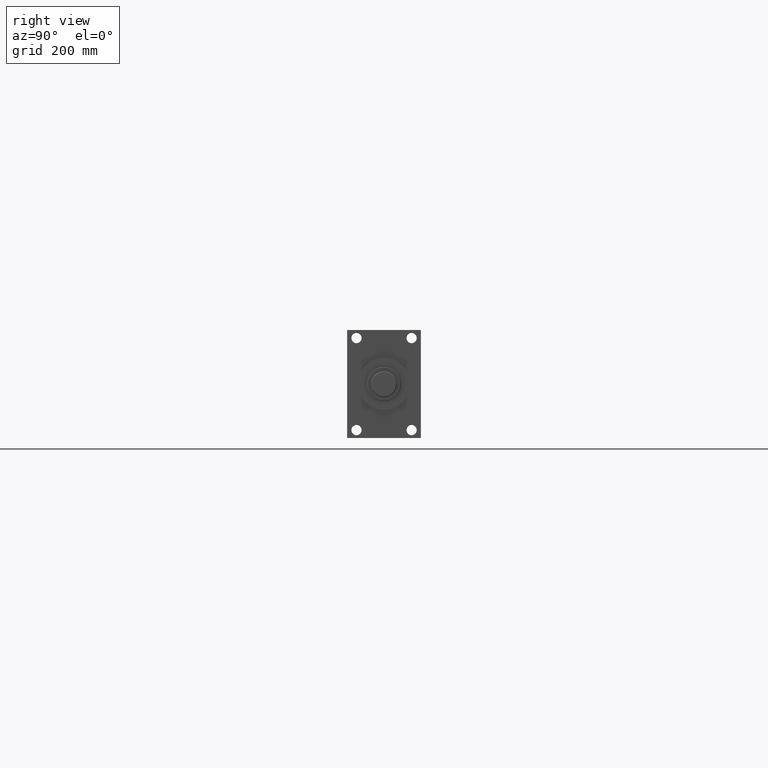
[diagram: clean part render]
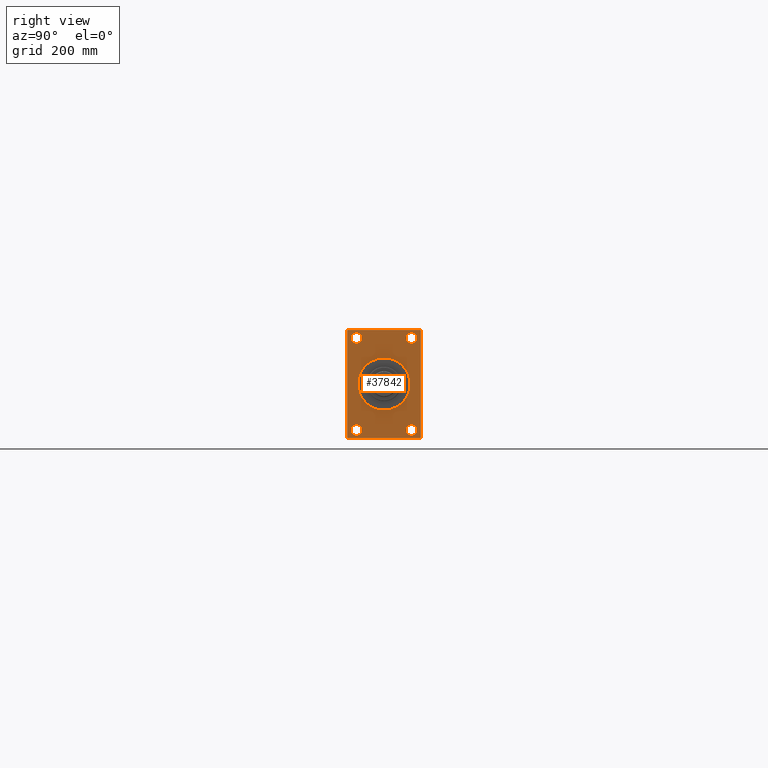
[diagram: same view with one face highlighted and labeled with its STEP entity id]
A machine part, right view. The second image highlights one B-rep face of the part: STEP entity #37842.
In plain terms, the highlighted planar face has unit normal (-1, 0, 0).
Its self-contained STEP definition (entity closure, byte-faithful):
#106 = ORIENTED_EDGE ( 'NONE', *, *, #2747, .T. ) ;
#253 = CARTESIAN_POINT ( 'NONE',  ( 1146.000000000000000, 0.000000000000000000, 46.00000000000000000 ) ) ;
#632 = ORIENTED_EDGE ( 'NONE', *, *, #41137, .F. ) ;
#1287 = DIRECTION ( 'NONE',  ( -1.000000000000000000, 0.000000000000000000, -0.000000000000000000 ) ) ;
#1589 = CARTESIAN_POINT ( 'NONE',  ( 1146.000000000000000, 64.99999999999997158, 94.99999999999997158 ) ) ;
#1931 = LINE ( 'NONE', #45971, #6034 ) ;
#1977 = EDGE_CURVE ( 'NONE', #7339, #36979, #26618, .T. ) ;
#2040 = CARTESIAN_POINT ( 'NONE',  ( 1146.000000000000000, -48.50000000000000000, 81.00000000000000000 ) ) ;
#2583 = AXIS2_PLACEMENT_3D ( 'NONE', #42895, #16620, #8857 ) ;
#2707 = ORIENTED_EDGE ( 'NONE', *, *, #32558, .T. ) ;
#2747 = EDGE_CURVE ( 'NONE', #45096, #46100, #27841, .T. ) ;
#3039 = EDGE_CURVE ( 'NONE', #30035, #10424, #33673, .T. ) ;
#3057 = DIRECTION ( 'NONE',  ( -0.000000000000000000, 0.000000000000000000, 1.000000000000000000 ) ) ;
#3300 = FACE_OUTER_BOUND ( 'NONE', #38415, .T. ) ;
#3521 = ORIENTED_EDGE ( 'NONE', *, *, #12786, .T. ) ;
#3701 = VERTEX_POINT ( 'NONE', #11917 ) ;
#3818 = ORIENTED_EDGE ( 'NONE', *, *, #46885, .T. ) ;
#4666 = AXIS2_PLACEMENT_3D ( 'NONE', #7363, #36567, #18063 ) ;
#6034 = VECTOR ( 'NONE', #31595, 1000.000000000000114 ) ;
#7013 = CARTESIAN_POINT ( 'NONE',  ( 1146.000000000000000, 64.49999999999992895, -95.00000000000001421 ) ) ;
#7048 = DIRECTION ( 'NONE',  ( -1.000000000000000000, 0.000000000000000000, -0.000000000000000000 ) ) ;
#7082 = VECTOR ( 'NONE', #39283, 1000.000000000000000 ) ;
#7339 = VERTEX_POINT ( 'NONE', #42814 ) ;
#7355 = DIRECTION ( 'NONE',  ( 0.000000000000000000, 0.000000000000000000, -1.000000000000000000 ) ) ;
#7363 = CARTESIAN_POINT ( 'NONE',  ( 1146.000000000000000, -48.49999999999999289, -81.00000000000001421 ) ) ;
#7577 = ORIENTED_EDGE ( 'NONE', *, *, #28703, .T. ) ;
#7670 = FACE_BOUND ( 'NONE', #17832, .T. ) ;
#8016 = VECTOR ( 'NONE', #9120, 1000.000000000000114 ) ;
#8146 = ORIENTED_EDGE ( 'NONE', *, *, #3039, .T. ) ;
#8191 = CARTESIAN_POINT ( 'NONE',  ( 1146.000000000000000, 48.50000000000000711, -71.49999999999995737 ) ) ;
#8273 = CARTESIAN_POINT ( 'NONE',  ( 1146.000000000000000, -65.00000000000001421, 94.50000000000002842 ) ) ;
#8445 = ORIENTED_EDGE ( 'NONE', *, *, #1977, .T. ) ;
#8822 = CARTESIAN_POINT ( 'NONE',  ( 1146.000000000000000, 48.50000000000000711, -81.00000000000001421 ) ) ;
#8857 = DIRECTION ( 'NONE',  ( 0.000000000000000000, 0.000000000000000000, 1.000000000000000000 ) ) ;
#9120 = DIRECTION ( 'NONE',  ( 0.000000000000000000, 0.7071067811864690800, -0.7071067811866260655 ) ) ;
#10169 = VECTOR ( 'NONE', #38377, 1000.000000000000000 ) ;
#10424 = VERTEX_POINT ( 'NONE', #12928 ) ;
#11088 = EDGE_CURVE ( 'NONE', #17420, #20852, #23526, .T. ) ;
#11448 = VERTEX_POINT ( 'NONE', #47031 ) ;
#11836 = VECTOR ( 'NONE', #42567, 1000.000000000000000 ) ;
#11917 = CARTESIAN_POINT ( 'NONE',  ( 1146.000000000000000, 64.50000000000002842, 94.99999999999997158 ) ) ;
#12771 = CARTESIAN_POINT ( 'NONE',  ( 1146.000000000000000, -64.50000000000018474, -95.00000000000002842 ) ) ;
#12786 = EDGE_CURVE ( 'NONE', #42928, #3701, #1931, .T. ) ;
#12928 = CARTESIAN_POINT ( 'NONE',  ( 1146.000000000000000, -48.49999999999999289, -90.50000000000008527 ) ) ;
#13027 = CARTESIAN_POINT ( 'NONE',  ( 1146.000000000000000, -65.00000000000001421, 94.99999999999997158 ) ) ;
#13272 = CARTESIAN_POINT ( 'NONE',  ( 1146.000000000000000, -48.50000000000000000, 81.00000000000000000 ) ) ;
#13708 = DIRECTION ( 'NONE',  ( 0.000000000000000000, 0.000000000000000000, 1.000000000000000000 ) ) ;
#14855 = DIRECTION ( 'NONE',  ( -0.000000000000000000, 0.7071067811866358355, 0.7071067811864591990 ) ) ;
#15105 = CARTESIAN_POINT ( 'NONE',  ( 1146.000000000000000, 64.99999999999998579, -94.50000000000008527 ) ) ;
#15557 = ORIENTED_EDGE ( 'NONE', *, *, #24661, .T. ) ;
#16277 = DIRECTION ( 'NONE',  ( -1.000000000000000000, 0.000000000000000000, -0.000000000000000000 ) ) ;
#16620 = DIRECTION ( 'NONE',  ( -1.000000000000000000, 0.000000000000000000, -0.000000000000000000 ) ) ;
#16743 = DIRECTION ( 'NONE',  ( 0.000000000000000000, 0.000000000000000000, 1.000000000000000000 ) ) ;
#16867 = DIRECTION ( 'NONE',  ( -1.000000000000000000, 0.000000000000000000, -0.000000000000000000 ) ) ;
#17420 = VERTEX_POINT ( 'NONE', #7013 ) ;
#17474 = DIRECTION ( 'NONE',  ( 1.000000000000000000, 0.000000000000000000, 0.000000000000000000 ) ) ;
#17832 = EDGE_LOOP ( 'NONE', ( #35184, #15557 ) ) ;
#18063 = DIRECTION ( 'NONE',  ( 0.000000000000000000, 0.000000000000000000, 1.000000000000000000 ) ) ;
#18133 = FACE_BOUND ( 'NONE', #37910, .T. ) ;
#18366 = ORIENTED_EDGE ( 'NONE', *, *, #40179, .T. ) ;
#18629 = VERTEX_POINT ( 'NONE', #24635 ) ;
#19681 = CARTESIAN_POINT ( 'NONE',  ( 1146.000000000000000, 48.50000000000000711, -81.00000000000001421 ) ) ;
#20790 = DIRECTION ( 'NONE',  ( -1.000000000000000000, 0.000000000000000000, -0.000000000000000000 ) ) ;
#20852 = VERTEX_POINT ( 'NONE', #24322 ) ;
#20991 = EDGE_LOOP ( 'NONE', ( #25717, #632 ) ) ;
#21708 = AXIS2_PLACEMENT_3D ( 'NONE', #40134, #7048, #28196 ) ;
#21734 = AXIS2_PLACEMENT_3D ( 'NONE', #32905, #47988, #7355 ) ;
#22341 = VERTEX_POINT ( 'NONE', #43644 ) ;
#23526 = LINE ( 'NONE', #28349, #10169 ) ;
#23963 = DIRECTION ( 'NONE',  ( 0.000000000000000000, 0.000000000000000000, -1.000000000000000000 ) ) ;
#24322 = CARTESIAN_POINT ( 'NONE',  ( 1146.000000000000000, -64.50000000000018474, -95.00000000000002842 ) ) ;
#24388 = DIRECTION ( 'NONE',  ( 0.000000000000000000, 0.000000000000000000, 1.000000000000000000 ) ) ;
#24635 = CARTESIAN_POINT ( 'NONE',  ( 1146.000000000000000, 48.50000000000000711, -90.50000000000008527 ) ) ;
#24661 = EDGE_CURVE ( 'NONE', #30120, #18629, #36115, .T. ) ;
#25364 = DIRECTION ( 'NONE',  ( -1.000000000000000000, 0.000000000000000000, -0.000000000000000000 ) ) ;
#25683 = CIRCLE ( 'NONE', #38879, 9.500000000000063949 ) ;
#25693 = ORIENTED_EDGE ( 'NONE', *, *, #30708, .T. ) ;
#25717 = ORIENTED_EDGE ( 'NONE', *, *, #34968, .F. ) ;
#26392 = FACE_BOUND ( 'NONE', #27223, .T. ) ;
#26618 = CIRCLE ( 'NONE', #45256, 9.500000000000063949 ) ;
#26636 = AXIS2_PLACEMENT_3D ( 'NONE', #36717, #17474, #40106 ) ;
#26962 = LINE ( 'NONE', #15105, #47494 ) ;
#27223 = EDGE_LOOP ( 'NONE', ( #2707, #7577 ) ) ;
#27415 = VECTOR ( 'NONE', #23963, 1000.000000000000000 ) ;
#27702 = CARTESIAN_POINT ( 'NONE',  ( 1146.000000000000000, 64.99999999999997158, 94.99999999999997158 ) ) ;
#27730 = ORIENTED_EDGE ( 'NONE', *, *, #44965, .T. ) ;
#27751 = DIRECTION ( 'NONE',  ( 0.000000000000000000, 0.000000000000000000, 1.000000000000000000 ) ) ;
#27841 = LINE ( 'NONE', #13027, #27415 ) ;
#28196 = DIRECTION ( 'NONE',  ( 0.000000000000000000, 0.000000000000000000, 1.000000000000000000 ) ) ;
#28349 = CARTESIAN_POINT ( 'NONE',  ( 1146.000000000000000, 64.99999999999998579, -95.00000000000001421 ) ) ;
#28398 = DIRECTION ( 'NONE',  ( -0.000000000000000000, -0.7071067811866162955, -0.7071067811864788499 ) ) ;
#28703 = EDGE_CURVE ( 'NONE', #22341, #11448, #37249, .T. ) ;
#29030 = ORIENTED_EDGE ( 'NONE', *, *, #33638, .T. ) ;
#29311 = PLANE ( 'NONE',  #39685 ) ;
#29432 = VECTOR ( 'NONE', #28398, 1000.000000000000114 ) ;
#29617 = CARTESIAN_POINT ( 'NONE',  ( 1146.000000000000000, -48.49999999999999289, -71.49999999999995737 ) ) ;
#29810 = DIRECTION ( 'NONE',  ( -1.000000000000000000, 0.000000000000000000, -0.000000000000000000 ) ) ;
#30035 = VERTEX_POINT ( 'NONE', #29617 ) ;
#30041 = CARTESIAN_POINT ( 'NONE',  ( 1146.000000000000000, 0.000000000000000000, 0.000000000000000000 ) ) ;
#30120 = VERTEX_POINT ( 'NONE', #8191 ) ;
#30441 = CARTESIAN_POINT ( 'NONE',  ( 1146.000000000000000, 5.633375276077824704E-15, -46.00000000000000000 ) ) ;
#30708 = EDGE_CURVE ( 'NONE', #10424, #30035, #46575, .T. ) ;
#30922 = CARTESIAN_POINT ( 'NONE',  ( 1146.000000000000000, -64.49999999999997158, 94.99999999999997158 ) ) ;
#31254 = LINE ( 'NONE', #12771, #8016 ) ;
#31595 = DIRECTION ( 'NONE',  ( 0.000000000000000000, -0.7071067811864690800, 0.7071067811866260655 ) ) ;
#31814 = CIRCLE ( 'NONE', #39617, 9.500000000000063949 ) ;
#31972 = LINE ( 'NONE', #1589, #7082 ) ;
#32558 = EDGE_CURVE ( 'NONE', #11448, #22341, #25683, .T. ) ;
#32699 = ORIENTED_EDGE ( 'NONE', *, *, #11088, .F. ) ;
#32854 = CIRCLE ( 'NONE', #26636, 46.00000000000000000 ) ;
#32905 = CARTESIAN_POINT ( 'NONE',  ( 1146.000000000000000, 0.000000000000000000, 0.000000000000000000 ) ) ;
#33638 = EDGE_CURVE ( 'NONE', #3701, #39761, #31972, .T. ) ;
#33673 = CIRCLE ( 'NONE', #2583, 9.500000000000063949 ) ;
#33864 = VERTEX_POINT ( 'NONE', #37341 ) ;
#34766 = ORIENTED_EDGE ( 'NONE', *, *, #39130, .T. ) ;
#34968 = EDGE_CURVE ( 'NONE', #35245, #47623, #44241, .T. ) ;
#35184 = ORIENTED_EDGE ( 'NONE', *, *, #35963, .T. ) ;
#35245 = VERTEX_POINT ( 'NONE', #253 ) ;
#35749 = EDGE_LOOP ( 'NONE', ( #8445, #27730 ) ) ;
#35963 = EDGE_CURVE ( 'NONE', #18629, #30120, #31814, .T. ) ;
#36115 = CIRCLE ( 'NONE', #46959, 9.500000000000063949 ) ;
#36567 = DIRECTION ( 'NONE',  ( -1.000000000000000000, 0.000000000000000000, -0.000000000000000000 ) ) ;
#36717 = CARTESIAN_POINT ( 'NONE',  ( 1146.000000000000000, 0.000000000000000000, 0.000000000000000000 ) ) ;
#36721 = AXIS2_PLACEMENT_3D ( 'NONE', #2040, #16867, #13708 ) ;
#36979 = VERTEX_POINT ( 'NONE', #41996 ) ;
#37249 = CIRCLE ( 'NONE', #21708, 9.500000000000063949 ) ;
#37341 = CARTESIAN_POINT ( 'NONE',  ( 1146.000000000000000, 64.99999999999998579, -94.50000000000008527 ) ) ;
#37367 = FACE_BOUND ( 'NONE', #35749, .T. ) ;
#37842 = ADVANCED_FACE ( 'NONE', ( #37367, #18133, #7670, #26392, #47568, #3300 ), #29311, .F. ) ;
#37910 = EDGE_LOOP ( 'NONE', ( #25693, #8146 ) ) ;
#38267 = CIRCLE ( 'NONE', #36721, 9.500000000000063949 ) ;
#38377 = DIRECTION ( 'NONE',  ( 0.000000000000000000, -1.000000000000000000, -1.067522139062650425E-16 ) ) ;
#38415 = EDGE_LOOP ( 'NONE', ( #106, #3818, #32699, #34766, #40356, #3521, #29030, #18366 ) ) ;
#38879 = AXIS2_PLACEMENT_3D ( 'NONE', #42902, #25364, #24388 ) ;
#39130 = EDGE_CURVE ( 'NONE', #17420, #33864, #26962, .T. ) ;
#39283 = DIRECTION ( 'NONE',  ( 0.000000000000000000, -1.000000000000000000, 0.000000000000000000 ) ) ;
#39617 = AXIS2_PLACEMENT_3D ( 'NONE', #8822, #1287, #27751 ) ;
#39685 = AXIS2_PLACEMENT_3D ( 'NONE', #30041, #29810, #3057 ) ;
#39761 = VERTEX_POINT ( 'NONE', #30922 ) ;
#40106 = DIRECTION ( 'NONE',  ( 0.000000000000000000, 0.000000000000000000, -1.000000000000000000 ) ) ;
#40134 = CARTESIAN_POINT ( 'NONE',  ( 1146.000000000000000, 48.50000000000000711, 81.00000000000000000 ) ) ;
#40179 = EDGE_CURVE ( 'NONE', #39761, #45096, #47392, .T. ) ;
#40356 = ORIENTED_EDGE ( 'NONE', *, *, #47826, .F. ) ;
#41137 = EDGE_CURVE ( 'NONE', #47623, #35245, #32854, .T. ) ;
#41996 = CARTESIAN_POINT ( 'NONE',  ( 1146.000000000000000, -48.50000000000000000, 90.50000000000007105 ) ) ;
#42567 = DIRECTION ( 'NONE',  ( 0.000000000000000000, 7.304098846218135653E-17, -1.000000000000000000 ) ) ;
#42814 = CARTESIAN_POINT ( 'NONE',  ( 1146.000000000000000, -48.50000000000000000, 71.49999999999994316 ) ) ;
#42895 = CARTESIAN_POINT ( 'NONE',  ( 1146.000000000000000, -48.49999999999999289, -81.00000000000001421 ) ) ;
#42902 = CARTESIAN_POINT ( 'NONE',  ( 1146.000000000000000, 48.50000000000000711, 81.00000000000000000 ) ) ;
#42928 = VERTEX_POINT ( 'NONE', #43534 ) ;
#42957 = DIRECTION ( 'NONE',  ( 0.000000000000000000, 0.000000000000000000, 1.000000000000000000 ) ) ;
#43534 = CARTESIAN_POINT ( 'NONE',  ( 1146.000000000000000, 64.99999999999997158, 94.49999999999991473 ) ) ;
#43644 = CARTESIAN_POINT ( 'NONE',  ( 1146.000000000000000, 48.50000000000000711, 90.50000000000007105 ) ) ;
#44241 = CIRCLE ( 'NONE', #21734, 46.00000000000000000 ) ;
#44384 = CARTESIAN_POINT ( 'NONE',  ( 1146.000000000000000, -65.00000000000001421, -94.50000000000008527 ) ) ;
#44965 = EDGE_CURVE ( 'NONE', #36979, #7339, #38267, .T. ) ;
#45096 = VERTEX_POINT ( 'NONE', #8273 ) ;
#45256 = AXIS2_PLACEMENT_3D ( 'NONE', #13272, #20790, #42957 ) ;
#45971 = CARTESIAN_POINT ( 'NONE',  ( 1146.000000000000000, 64.50000000000002842, 94.99999999999997158 ) ) ;
#46100 = VERTEX_POINT ( 'NONE', #44384 ) ;
#46212 = LINE ( 'NONE', #27702, #11836 ) ;
#46575 = CIRCLE ( 'NONE', #4666, 9.500000000000063949 ) ;
#46885 = EDGE_CURVE ( 'NONE', #46100, #20852, #31254, .T. ) ;
#46959 = AXIS2_PLACEMENT_3D ( 'NONE', #19681, #16277, #16743 ) ;
#47031 = CARTESIAN_POINT ( 'NONE',  ( 1146.000000000000000, 48.50000000000000711, 71.49999999999994316 ) ) ;
#47392 = LINE ( 'NONE', #47639, #29432 ) ;
#47494 = VECTOR ( 'NONE', #14855, 1000.000000000000227 ) ;
#47568 = FACE_BOUND ( 'NONE', #20991, .T. ) ;
#47623 = VERTEX_POINT ( 'NONE', #30441 ) ;
#47639 = CARTESIAN_POINT ( 'NONE',  ( 1146.000000000000000, -65.00000000000001421, 94.50000000000002842 ) ) ;
#47826 = EDGE_CURVE ( 'NONE', #42928, #33864, #46212, .T. ) ;
#47988 = DIRECTION ( 'NONE',  ( 1.000000000000000000, 0.000000000000000000, 0.000000000000000000 ) ) ;